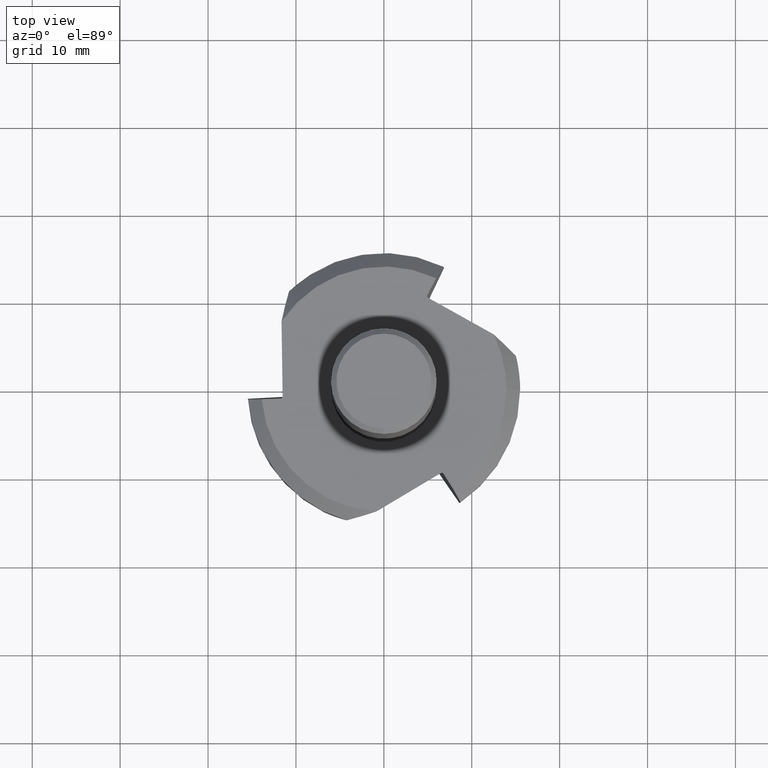
[diagram: clean part render]
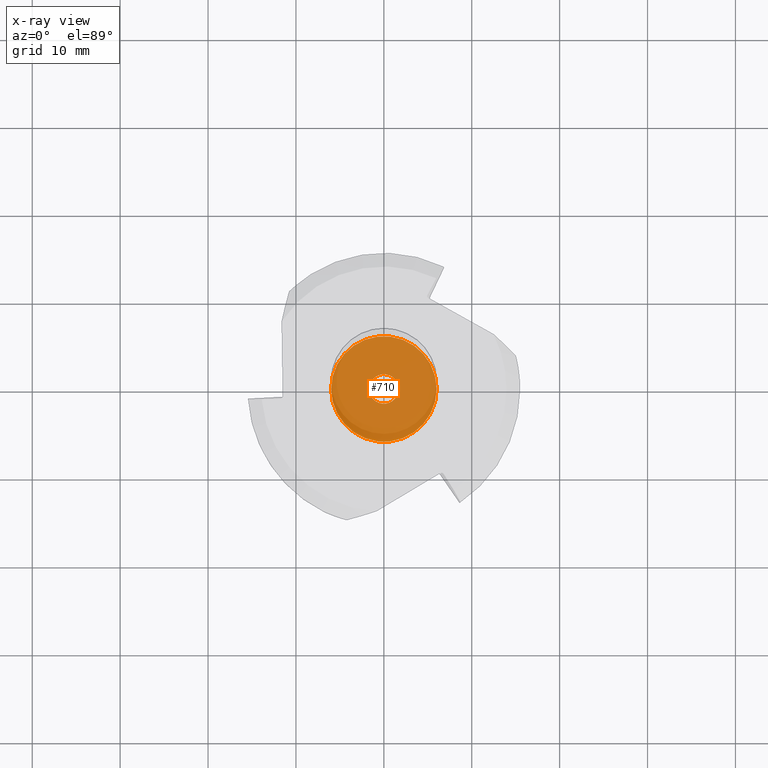
[diagram: x-ray — body ghosted, one internal face saturated and labeled with its STEP entity id]
A machine part, top view, then the same camera in x-ray: the body is ghosted and one INTERNAL B-rep face — a face not visible from any outside direction — is saturated and labeled: STEP entity #710.
In plain terms, the highlighted planar face has unit normal (0, 0, -1).
Its self-contained STEP definition (entity closure, byte-faithful):
#494=EDGE_CURVE('',#542,#726,#1260,.T.);
#542=VERTEX_POINT('',#1311);
#622=EDGE_CURVE('',#738,#890,#1399,.T.);
#710=ADVANCED_FACE('',(#1492,#1493),#1494,.T.);
#726=VERTEX_POINT('',#1511);
#738=VERTEX_POINT('',#1524);
#890=VERTEX_POINT('',#1692);
#924=EDGE_CURVE('',#890,#738,#1727,.T.);
#962=EDGE_CURVE('',#726,#542,#1769,.T.);
#1260=CIRCLE('',#2205,1.68);
#1311=CARTESIAN_POINT('',(-1.68,0.0,-52.24));
#1399=CIRCLE('',#2474,6.0);
#1492=FACE_BOUND('',#2671,.T.);
#1493=FACE_OUTER_BOUND('',#2672,.T.);
#1494=PLANE('',#2673);
#1511=CARTESIAN_POINT('',(1.68,2.05733867442159E-016,-52.24));
#1524=CARTESIAN_POINT('',(6.0,7.34763812293426E-016,-52.24));
#1692=CARTESIAN_POINT('',(-6.0,0.0,-52.24));
#1727=CIRCLE('',#3215,6.0);
#1769=CIRCLE('',#3293,1.68);
#2205=AXIS2_PLACEMENT_3D('',#3941,#3942,#3943);
#2474=AXIS2_PLACEMENT_3D('',#4093,#4094,#4095);
#2671=EDGE_LOOP('',(#4179,#4180));
#2672=EDGE_LOOP('',(#4181,#4182));
#2673=AXIS2_PLACEMENT_3D('',#4183,#4184,#4185);
#3215=AXIS2_PLACEMENT_3D('',#4438,#4439,#4440);
#3293=AXIS2_PLACEMENT_3D('',#4482,#4483,#4484);
#3941=CARTESIAN_POINT('',(0.0,0.0,-52.24));
#3942=DIRECTION('',(0.0,0.0,-1.0));
#3943=DIRECTION('',(-1.0,0.0,0.0));
#4093=CARTESIAN_POINT('',(0.0,0.0,-52.24));
#4094=DIRECTION('',(0.0,0.0,-1.0));
#4095=DIRECTION('',(-1.0,0.0,0.0));
#4179=ORIENTED_EDGE('',*,*,#494,.F.);
#4180=ORIENTED_EDGE('',*,*,#962,.F.);
#4181=ORIENTED_EDGE('',*,*,#924,.T.);
#4182=ORIENTED_EDGE('',*,*,#622,.T.);
#4183=CARTESIAN_POINT('',(-3.84,0.0,-52.24));
#4184=DIRECTION('',(0.0,0.0,-1.0));
#4185=DIRECTION('',(-1.0,0.0,0.0));
#4438=CARTESIAN_POINT('',(0.0,0.0,-52.24));
#4439=DIRECTION('',(0.0,0.0,-1.0));
#4440=DIRECTION('',(-1.0,0.0,0.0));
#4482=CARTESIAN_POINT('',(0.0,0.0,-52.24));
#4483=DIRECTION('',(0.0,0.0,-1.0));
#4484=DIRECTION('',(-1.0,0.0,0.0));